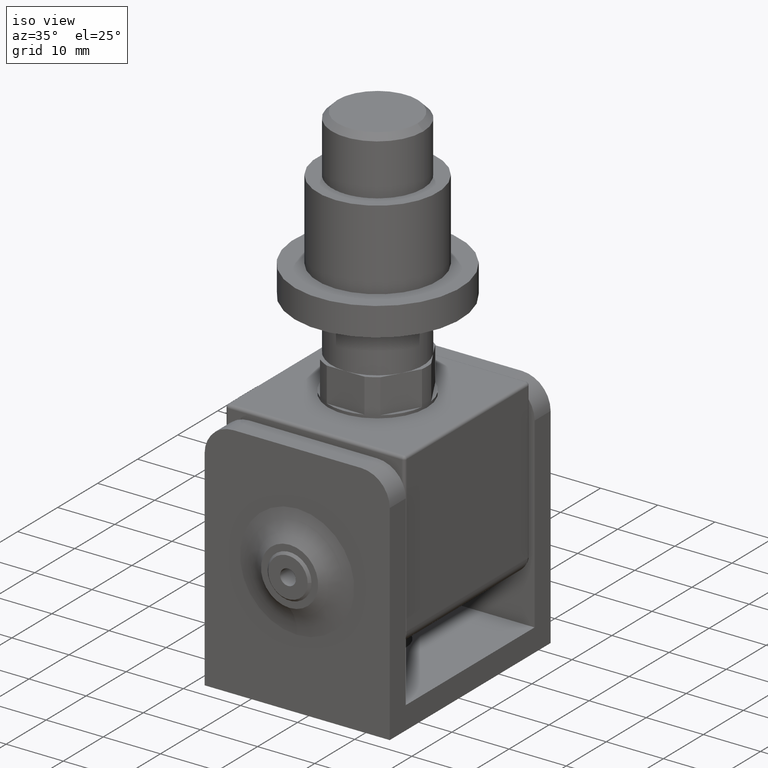
[diagram: clean part render]
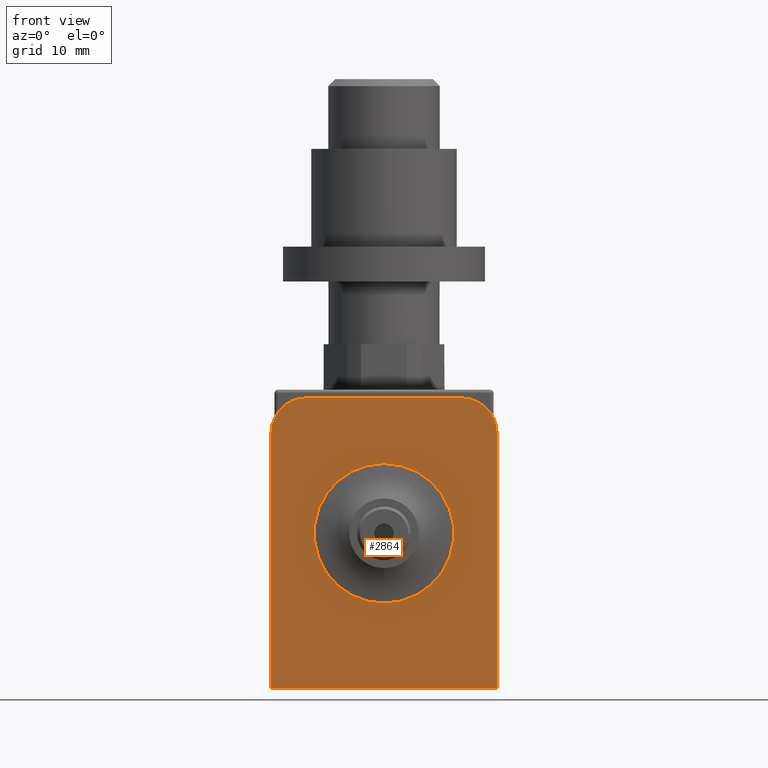
[diagram: tour spotlight — one face highlighted and labeled with its STEP entity id]
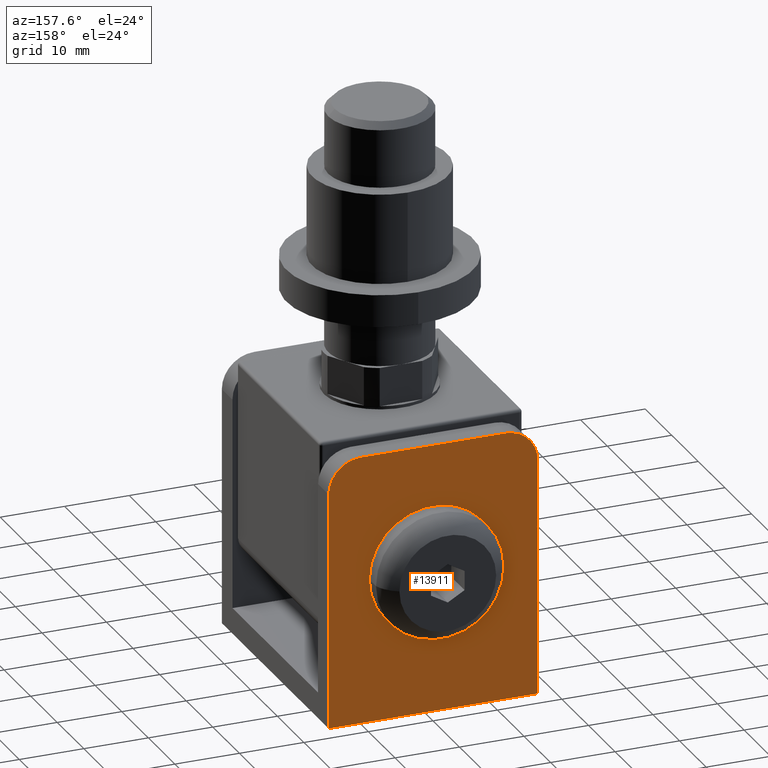
[diagram: tour spotlight — one face highlighted and labeled with its STEP entity id]
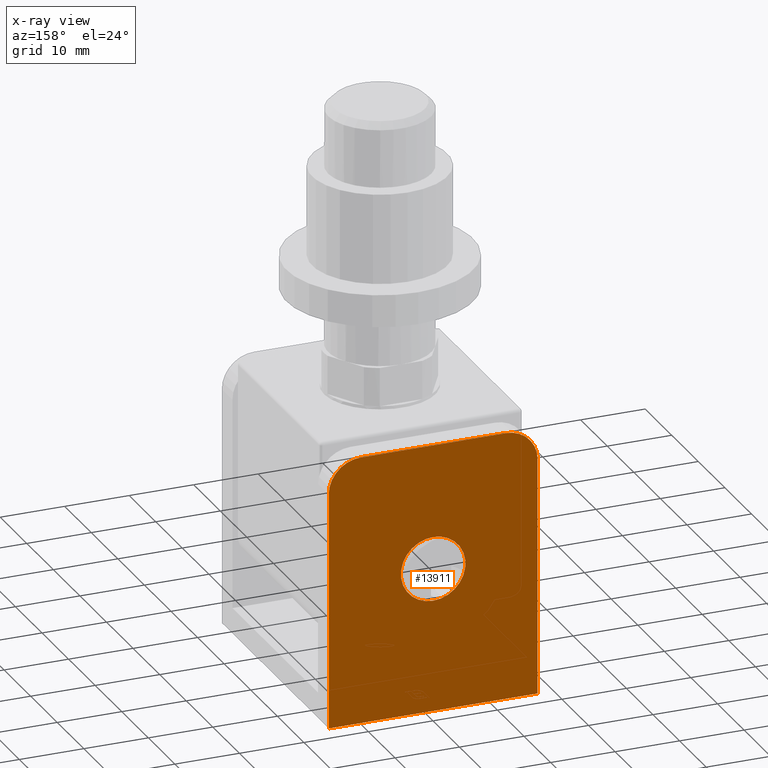
[diagram: x-ray of the same camera — body ghosted, this tour face saturated]
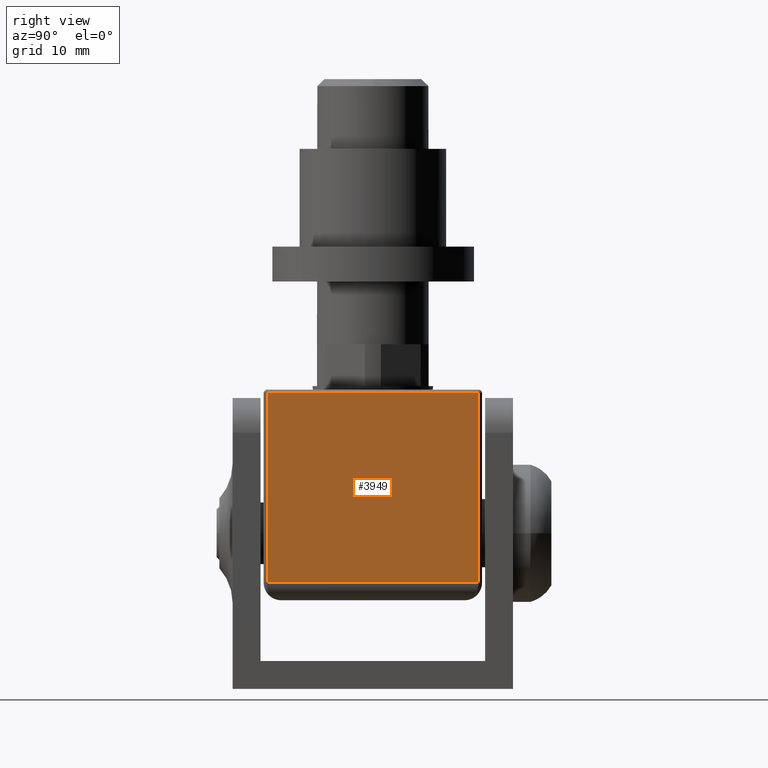
[diagram: tour spotlight — one face highlighted and labeled with its STEP entity id]
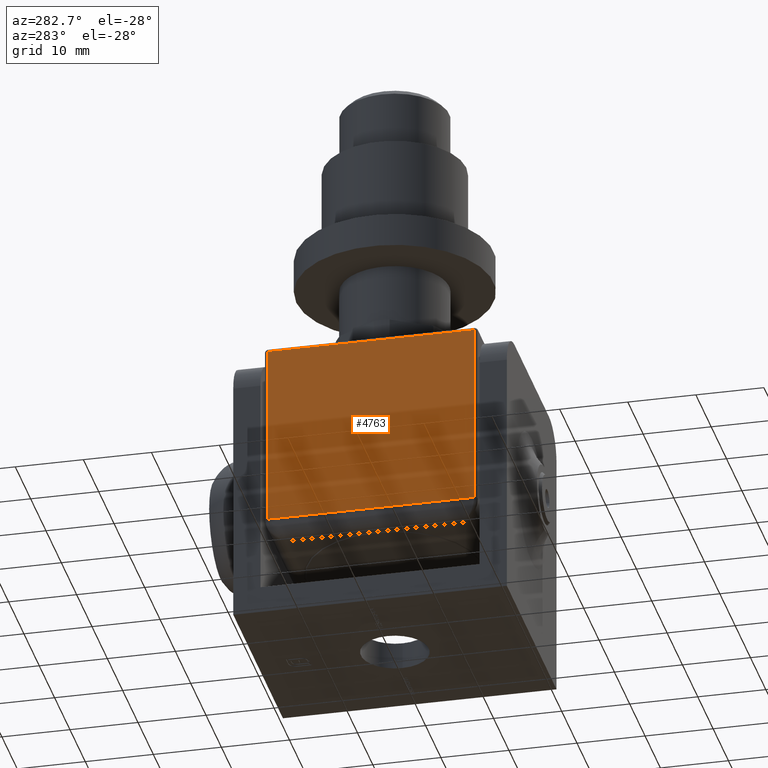
[diagram: tour spotlight — one face highlighted and labeled with its STEP entity id]
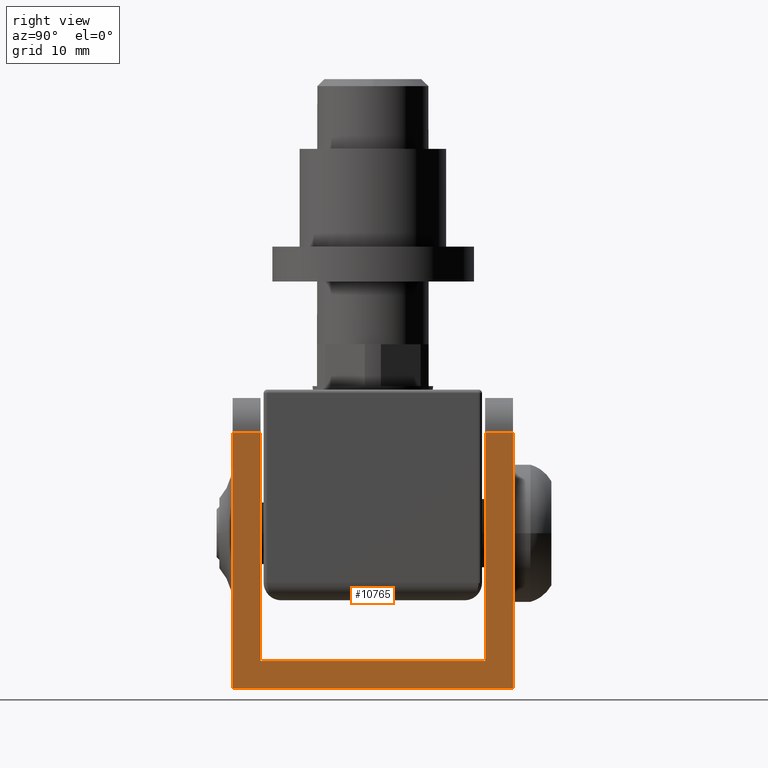
[diagram: tour spotlight — one face highlighted and labeled with its STEP entity id]
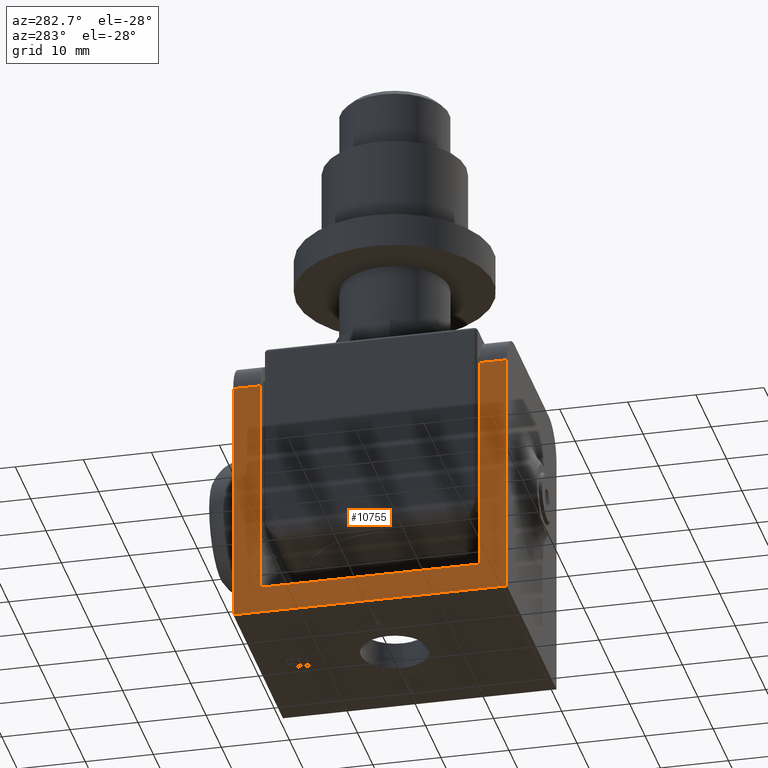
[diagram: tour spotlight — one face highlighted and labeled with its STEP entity id]
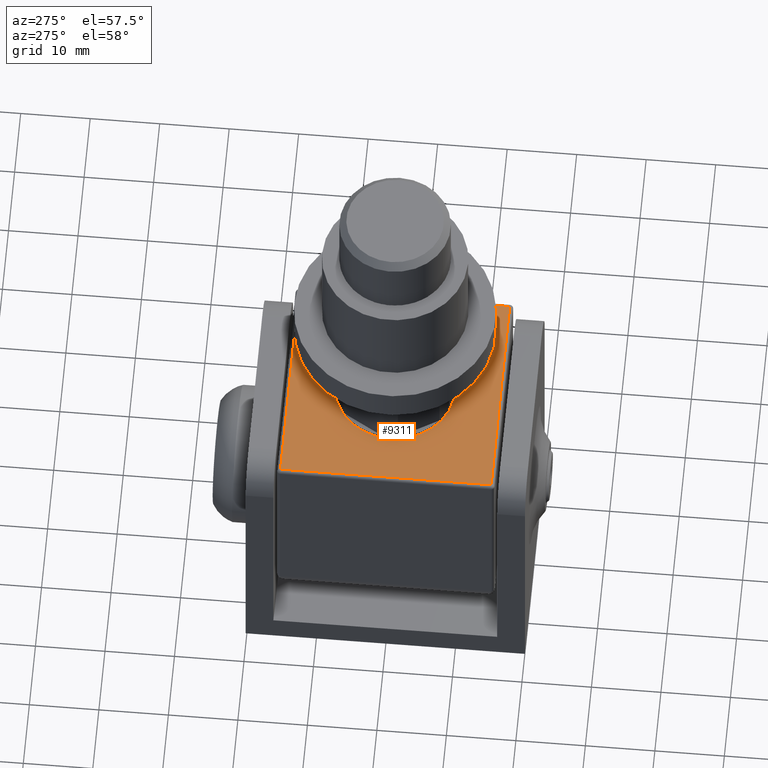
[diagram: tour spotlight — one face highlighted and labeled with its STEP entity id]
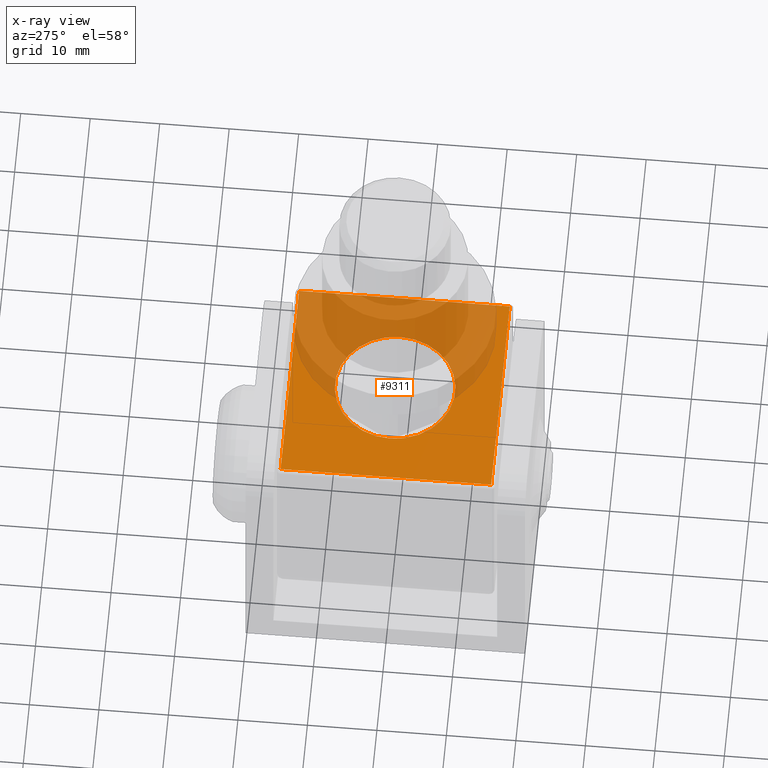
[diagram: x-ray of the same camera — body ghosted, this tour face saturated]
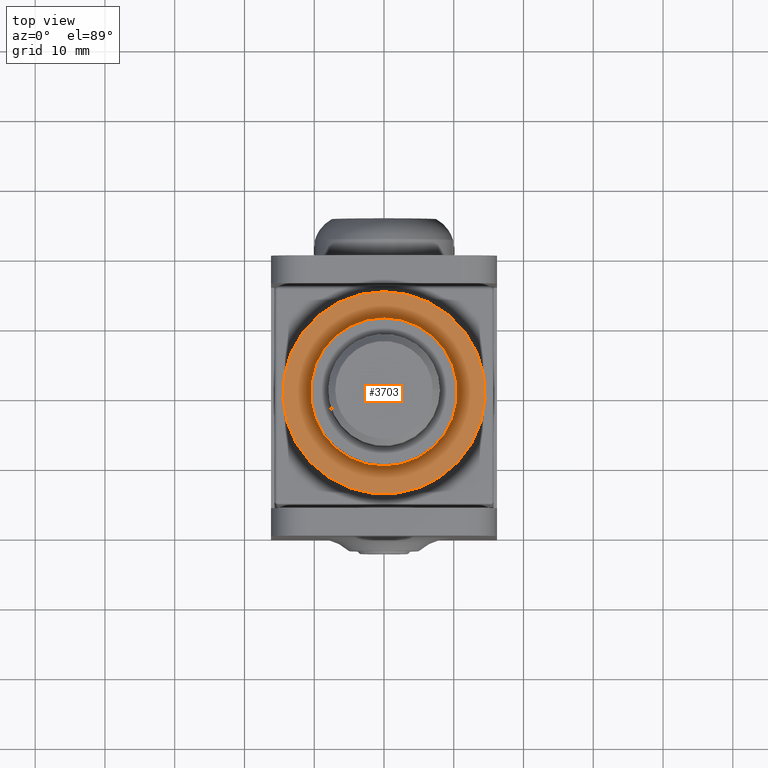
[diagram: tour spotlight — one face highlighted and labeled with its STEP entity id]
A machine part: a face-by-face anatomy tour. The part has 358 B-rep faces; the first image is the clean iso view, then the 8 largest visible faces are spotlighted one at a time (largest first), each with its STEP entity span.

Face 1 — front view, entity #2864. In plain terms, the highlighted planar face has unit normal (0, 1, 0).
Definition (entity closure, byte-faithful):
#518 = DIRECTION ( 'NONE',  ( 0.000000000000000000, -1.000000000000000000, -8.320016671351592820E-17 ) ) ;
#564 = CARTESIAN_POINT ( 'NONE',  ( 11.19999999999999751, -20.10000000000000142, 20.84999999999999432 ) ) ;
#811 = CARTESIAN_POINT ( 'NONE',  ( 16.19999999999999929, -20.10000000000000142, 20.84999999999999432 ) ) ;
#851 = CARTESIAN_POINT ( 'NONE',  ( -16.19999999999999929, -20.09999999999999787, -20.85000000000000853 ) ) ;
#889 = LINE ( 'NONE', #9483, #4827 ) ;
#1479 = ORIENTED_EDGE ( 'NONE', *, *, #5475, .F. ) ;
#1651 = AXIS2_PLACEMENT_3D ( 'NONE', #9120, #1991, #15216 ) ;
#1750 = CARTESIAN_POINT ( 'NONE',  ( 11.19999999999999751, -20.10000000000000142, 15.84999999999999609 ) ) ;
#1991 = DIRECTION ( 'NONE',  ( -0.000000000000000000, 1.000000000000000000, 8.320016671351592820E-17 ) ) ;
#2022 = DIRECTION ( 'NONE',  ( -0.000000000000000000, 8.320016671351592820E-17, -1.000000000000000000 ) ) ;
#2117 = EDGE_CURVE ( 'NONE', #14115, #7641, #2858, .T. ) ;
#2144 = PLANE ( 'NONE',  #1651 ) ;
#2858 = CIRCLE ( 'NONE', #3242, 5.000000000000000888 ) ;
#2864 = ADVANCED_FACE ( 'NONE', ( #3932, #9928 ), #2144, .F. ) ;
#2936 = EDGE_CURVE ( 'NONE', #7641, #11151, #9175, .T. ) ;
#2960 = ORIENTED_EDGE ( 'NONE', *, *, #13656, .T. ) ;
#3242 = AXIS2_PLACEMENT_3D ( 'NONE', #1750, #518, #6703 ) ;
#3824 = CARTESIAN_POINT ( 'NONE',  ( -11.19999999999999751, -20.10000000000000142, 20.84999999999999432 ) ) ;
#3932 = FACE_BOUND ( 'NONE', #5524, .T. ) ;
#4608 = ORIENTED_EDGE ( 'NONE', *, *, #15396, .T. ) ;
#4646 = DIRECTION ( 'NONE',  ( -1.000000000000000000, -0.000000000000000000, -0.000000000000000000 ) ) ;
#4811 = EDGE_CURVE ( 'NONE', #14301, #9788, #889, .T. ) ;
#4827 = VECTOR ( 'NONE', #14547, 1000.000000000000000 ) ;
#5137 = LINE ( 'NONE', #851, #11271 ) ;
#5475 = EDGE_CURVE ( 'NONE', #11254, #11254, #15276, .T. ) ;
#5501 = LINE ( 'NONE', #7041, #13654 ) ;
#5524 = EDGE_LOOP ( 'NONE', ( #1479 ) ) ;
#5588 = CIRCLE ( 'NONE', #8293, 5.000000000000000888 ) ;
#5986 = VERTEX_POINT ( 'NONE', #11732 ) ;
#6019 = VECTOR ( 'NONE', #4646, 1000.000000000000000 ) ;
#6703 = DIRECTION ( 'NONE',  ( -1.040834085586084059E-15, 0.000000000000000000, 1.000000000000000000 ) ) ;
#6713 = DIRECTION ( 'NONE',  ( 0.000000000000000000, -1.000000000000000000, -8.320016671351592820E-17 ) ) ;
#6760 = ORIENTED_EDGE ( 'NONE', *, *, #4811, .F. ) ;
#7041 = CARTESIAN_POINT ( 'NONE',  ( 16.19999999999999929, -20.09999999999999787, -20.85000000000000853 ) ) ;
#7299 = DIRECTION ( 'NONE',  ( 0.000000000000000000, 0.000000000000000000, -1.000000000000000000 ) ) ;
#7641 = VERTEX_POINT ( 'NONE', #564 ) ;
#8225 = DIRECTION ( 'NONE',  ( -0.000000000000000000, 8.320016671351592820E-17, -1.000000000000000000 ) ) ;
#8293 = AXIS2_PLACEMENT_3D ( 'NONE', #12772, #6713, #15203 ) ;
#8859 = EDGE_CURVE ( 'NONE', #14115, #14301, #5501, .T. ) ;
#9120 = CARTESIAN_POINT ( 'NONE',  ( 16.19999999999999929, -20.09999999999999787, -20.85000000000000853 ) ) ;
#9175 = LINE ( 'NONE', #811, #6019 ) ;
#9425 = ORIENTED_EDGE ( 'NONE', *, *, #2936, .T. ) ;
#9483 = CARTESIAN_POINT ( 'NONE',  ( 16.19999999999999929, -20.09999999999999787, -20.85000000000000853 ) ) ;
#9755 = DIRECTION ( 'NONE',  ( -0.000000000000000000, -1.000000000000000000, -0.000000000000000000 ) ) ;
#9788 = VERTEX_POINT ( 'NONE', #10820 ) ;
#9890 = EDGE_LOOP ( 'NONE', ( #13016, #13807, #9425, #2960, #4608, #6760 ) ) ;
#9928 = FACE_OUTER_BOUND ( 'NONE', #9890, .T. ) ;
#10820 = CARTESIAN_POINT ( 'NONE',  ( -16.19999999999999929, -20.09999999999999787, -20.85000000000000853 ) ) ;
#11028 = AXIS2_PLACEMENT_3D ( 'NONE', #13105, #9755, #7299 ) ;
#11151 = VERTEX_POINT ( 'NONE', #3824 ) ;
#11254 = VERTEX_POINT ( 'NONE', #12913 ) ;
#11271 = VECTOR ( 'NONE', #2022, 1000.000000000000000 ) ;
#11732 = CARTESIAN_POINT ( 'NONE',  ( -16.19999999999999929, -20.10000000000000142, 15.84999999999998899 ) ) ;
#12772 = CARTESIAN_POINT ( 'NONE',  ( -11.19999999999999751, -20.10000000000000142, 15.84999999999999609 ) ) ;
#12913 = CARTESIAN_POINT ( 'NONE',  ( 0.000000000000000000, -20.10000000000000142, -8.550000000000007816 ) ) ;
#13016 = ORIENTED_EDGE ( 'NONE', *, *, #8859, .F. ) ;
#13105 = CARTESIAN_POINT ( 'NONE',  ( 0.000000000000000000, -20.10000000000000142, 1.449999999999993072 ) ) ;
#13472 = CARTESIAN_POINT ( 'NONE',  ( 16.19999999999999929, -20.09999999999999787, -20.85000000000000853 ) ) ;
#13525 = CARTESIAN_POINT ( 'NONE',  ( 16.19999999999999929, -20.10000000000000142, 15.84999999999998899 ) ) ;
#13654 = VECTOR ( 'NONE', #8225, 1000.000000000000000 ) ;
#13656 = EDGE_CURVE ( 'NONE', #11151, #5986, #5588, .T. ) ;
#13807 = ORIENTED_EDGE ( 'NONE', *, *, #2117, .T. ) ;
#14115 = VERTEX_POINT ( 'NONE', #13525 ) ;
#14301 = VERTEX_POINT ( 'NONE', #13472 ) ;
#14547 = DIRECTION ( 'NONE',  ( -1.000000000000000000, -0.000000000000000000, -0.000000000000000000 ) ) ;
#15203 = DIRECTION ( 'NONE',  ( 0.000000000000000000, 0.000000000000000000, 1.000000000000000000 ) ) ;
#15216 = DIRECTION ( 'NONE',  ( 0.000000000000000000, -8.320016671351592820E-17, 1.000000000000000000 ) ) ;
#15276 = CIRCLE ( 'NONE', #11028, 10.00000000000000000 ) ;
#15396 = EDGE_CURVE ( 'NONE', #5986, #9788, #5137, .T. ) ;

Face 2 — auxiliary view, entity #13911. An x-ray twin of the same camera follows (body ghosted, this face saturated) — the face is partly hidden behind the body. In plain terms, the highlighted planar face has unit normal (0, -1, -0).
Definition (entity closure, byte-faithful):
#103 = LINE ( 'NONE', #11589, #8137 ) ;
#355 = CARTESIAN_POINT ( 'NONE',  ( -16.19999999999999929, 20.09999999999999787, 20.85000000000000142 ) ) ;
#607 = CARTESIAN_POINT ( 'NONE',  ( 0.000000000000000000, 20.10000000000000142, 1.449999999999999956 ) ) ;
#623 = VERTEX_POINT ( 'NONE', #10545 ) ;
#938 = ORIENTED_EDGE ( 'NONE', *, *, #8092, .T. ) ;
#1374 = CIRCLE ( 'NONE', #12847, 5.000000000000000000 ) ;
#2060 = CARTESIAN_POINT ( 'NONE',  ( 11.19999999999999751, 20.09999999999999787, 20.85000000000000142 ) ) ;
#2363 = ORIENTED_EDGE ( 'NONE', *, *, #12056, .T. ) ;
#2403 = ORIENTED_EDGE ( 'NONE', *, *, #10588, .F. ) ;
#3107 = DIRECTION ( 'NONE',  ( -0.000000000000000000, -8.320016671351592820E-17, 1.000000000000000000 ) ) ;
#3129 = DIRECTION ( 'NONE',  ( -1.000000000000000000, -0.000000000000000000, -0.000000000000000000 ) ) ;
#3165 = CARTESIAN_POINT ( 'NONE',  ( 16.19999999999999929, 20.09999999999999787, 20.85000000000000142 ) ) ;
#3509 = EDGE_CURVE ( 'NONE', #10697, #5948, #4292, .T. ) ;
#3822 = CARTESIAN_POINT ( 'NONE',  ( 16.19999999999999929, 20.09999999999999787, 20.85000000000000142 ) ) ;
#3893 = FACE_OUTER_BOUND ( 'NONE', #11222, .T. ) ;
#4043 = CIRCLE ( 'NONE', #12116, 5.000000000000000888 ) ;
#4292 = LINE ( 'NONE', #8311, #11935 ) ;
#4400 = VERTEX_POINT ( 'NONE', #8389 ) ;
#4503 = ORIENTED_EDGE ( 'NONE', *, *, #3509, .F. ) ;
#4542 = DIRECTION ( 'NONE',  ( 0.000000000000000000, 0.000000000000000000, -1.000000000000000000 ) ) ;
#4991 = EDGE_CURVE ( 'NONE', #4400, #5948, #4043, .T. ) ;
#5096 = VERTEX_POINT ( 'NONE', #8352 ) ;
#5118 = ORIENTED_EDGE ( 'NONE', *, *, #11719, .F. ) ;
#5246 = CARTESIAN_POINT ( 'NONE',  ( -11.19999999999999751, 20.09999999999999787, 20.85000000000000142 ) ) ;
#5754 = CARTESIAN_POINT ( 'NONE',  ( -11.19999999999999751, 20.09999999999999787, 15.85000000000000320 ) ) ;
#5948 = VERTEX_POINT ( 'NONE', #5246 ) ;
#6098 = VECTOR ( 'NONE', #9714, 1000.000000000000000 ) ;
#6246 = DIRECTION ( 'NONE',  ( 0.000000000000000000, 8.320016671351592820E-17, -1.000000000000000000 ) ) ;
#6296 = ORIENTED_EDGE ( 'NONE', *, *, #15462, .T. ) ;
#6384 = CARTESIAN_POINT ( 'NONE',  ( 11.19999999999999751, 20.09999999999999787, 15.85000000000000320 ) ) ;
#6525 = DIRECTION ( 'NONE',  ( 0.000000000000000000, 0.000000000000000000, 1.000000000000000000 ) ) ;
#7453 = FACE_BOUND ( 'NONE', #8080, .T. ) ;
#7549 = CARTESIAN_POINT ( 'NONE',  ( 16.19999999999999929, 20.10000000000000142, -20.85000000000000853 ) ) ;
#8080 = EDGE_LOOP ( 'NONE', ( #2403 ) ) ;
#8092 = EDGE_CURVE ( 'NONE', #12096, #4400, #13310, .T. ) ;
#8137 = VECTOR ( 'NONE', #3129, 1000.000000000000000 ) ;
#8311 = CARTESIAN_POINT ( 'NONE',  ( 16.19999999999999929, 20.09999999999999787, 20.85000000000000142 ) ) ;
#8352 = CARTESIAN_POINT ( 'NONE',  ( 16.19999999999999929, 20.09999999999999787, 15.85000000000000320 ) ) ;
#8389 = CARTESIAN_POINT ( 'NONE',  ( -16.19999999999999929, 20.09999999999999787, 15.85000000000000320 ) ) ;
#8713 = DIRECTION ( 'NONE',  ( -0.000000000000000000, 1.000000000000000000, 8.320016671351592820E-17 ) ) ;
#8965 = CIRCLE ( 'NONE', #13164, 5.000000000000000888 ) ;
#9618 = VERTEX_POINT ( 'NONE', #7549 ) ;
#9714 = DIRECTION ( 'NONE',  ( -0.000000000000000000, -8.320016671351592820E-17, 1.000000000000000000 ) ) ;
#9899 = AXIS2_PLACEMENT_3D ( 'NONE', #3822, #14505, #6246 ) ;
#10161 = DIRECTION ( 'NONE',  ( 0.000000000000000000, 1.000000000000000000, 1.101411730778924924E-16 ) ) ;
#10418 = CARTESIAN_POINT ( 'NONE',  ( -16.19999999999999929, 20.10000000000000142, -20.85000000000000853 ) ) ;
#10545 = CARTESIAN_POINT ( 'NONE',  ( 0.000000000000000000, 20.10000000000000142, 6.450000000000000178 ) ) ;
#10588 = EDGE_CURVE ( 'NONE', #623, #623, #1374, .T. ) ;
#10697 = VERTEX_POINT ( 'NONE', #2060 ) ;
#10858 = PLANE ( 'NONE',  #9899 ) ;
#11222 = EDGE_LOOP ( 'NONE', ( #4503, #2363, #5118, #6296, #938, #12453 ) ) ;
#11589 = CARTESIAN_POINT ( 'NONE',  ( 16.19999999999999929, 20.10000000000000142, -20.85000000000000853 ) ) ;
#11719 = EDGE_CURVE ( 'NONE', #9618, #5096, #15331, .T. ) ;
#11875 = DIRECTION ( 'NONE',  ( -0.000000000000000000, 1.000000000000000000, 8.320016671351592820E-17 ) ) ;
#11892 = DIRECTION ( 'NONE',  ( -1.000000000000000000, -0.000000000000000000, -0.000000000000000000 ) ) ;
#11935 = VECTOR ( 'NONE', #11892, 1000.000000000000000 ) ;
#12056 = EDGE_CURVE ( 'NONE', #10697, #5096, #8965, .T. ) ;
#12096 = VERTEX_POINT ( 'NONE', #10418 ) ;
#12116 = AXIS2_PLACEMENT_3D ( 'NONE', #5754, #11875, #4542 ) ;
#12125 = VECTOR ( 'NONE', #3107, 1000.000000000000000 ) ;
#12453 = ORIENTED_EDGE ( 'NONE', *, *, #4991, .T. ) ;
#12847 = AXIS2_PLACEMENT_3D ( 'NONE', #607, #10161, #6525 ) ;
#13164 = AXIS2_PLACEMENT_3D ( 'NONE', #6384, #8713, #13474 ) ;
#13310 = LINE ( 'NONE', #355, #6098 ) ;
#13474 = DIRECTION ( 'NONE',  ( 0.000000000000000000, 0.000000000000000000, -1.000000000000000000 ) ) ;
#13911 = ADVANCED_FACE ( 'NONE', ( #7453, #3893 ), #10858, .F. ) ;
#14505 = DIRECTION ( 'NONE',  ( 0.000000000000000000, -1.000000000000000000, -8.320016671351592820E-17 ) ) ;
#15331 = LINE ( 'NONE', #3165, #12125 ) ;
#15462 = EDGE_CURVE ( 'NONE', #9618, #12096, #103, .T. ) ;

Face 3 — right view, entity #3949. In plain terms, the highlighted planar face has unit normal (-1, 0, 0).
Definition (entity closure, byte-faithful):
#371 = EDGE_LOOP ( 'NONE', ( #11568, #6576, #12051, #13258 ) ) ;
#555 = CARTESIAN_POINT ( 'NONE',  ( 15.69999999999999574, 15.15000000000000036, -12.59999999999999787 ) ) ;
#1798 = CARTESIAN_POINT ( 'NONE',  ( 15.69999999999999574, -15.15000000000000036, -12.59999999999999787 ) ) ;
#1899 = DIRECTION ( 'NONE',  ( 0.000000000000000000, -1.000000000000000000, 0.000000000000000000 ) ) ;
#1951 = FACE_OUTER_BOUND ( 'NONE', #371, .T. ) ;
#3617 = VECTOR ( 'NONE', #14136, 1000.000000000000000 ) ;
#3680 = EDGE_CURVE ( 'NONE', #12036, #12292, #10165, .T. ) ;
#3949 = ADVANCED_FACE ( 'NONE', ( #1951 ), #5835, .F. ) ;
#3980 = EDGE_CURVE ( 'NONE', #4880, #12036, #6789, .T. ) ;
#4569 = DIRECTION ( 'NONE',  ( -1.000000000000000000, 0.000000000000000000, 1.148823494024375448E-16 ) ) ;
#4880 = VERTEX_POINT ( 'NONE', #555 ) ;
#5048 = AXIS2_PLACEMENT_3D ( 'NONE', #10403, #4569, #5779 ) ;
#5451 = LINE ( 'NONE', #5674, #13261 ) ;
#5480 = CARTESIAN_POINT ( 'NONE',  ( 15.69999999999999574, -15.15000000000000036, -15.09999999999999964 ) ) ;
#5674 = CARTESIAN_POINT ( 'NONE',  ( 15.69999999999999574, 15.65000000000000036, -12.59999999999999787 ) ) ;
#5779 = DIRECTION ( 'NONE',  ( 1.148823494024375448E-16, 0.000000000000000000, 1.000000000000000000 ) ) ;
#5835 = PLANE ( 'NONE',  #5048 ) ;
#6450 = VERTEX_POINT ( 'NONE', #1798 ) ;
#6576 = ORIENTED_EDGE ( 'NONE', *, *, #12660, .T. ) ;
#6789 = LINE ( 'NONE', #7081, #3617 ) ;
#7081 = CARTESIAN_POINT ( 'NONE',  ( 15.69999999999999929, 15.15000000000000036, 15.09999999999999964 ) ) ;
#7282 = VECTOR ( 'NONE', #12639, 1000.000000000000000 ) ;
#7826 = CARTESIAN_POINT ( 'NONE',  ( 15.69999999999999929, 15.65000000000000036, 14.59999999999999787 ) ) ;
#7904 = DIRECTION ( 'NONE',  ( -0.000000000000000000, 1.000000000000000000, -0.000000000000000000 ) ) ;
#9159 = LINE ( 'NONE', #5480, #7282 ) ;
#9621 = VECTOR ( 'NONE', #1899, 1000.000000000000000 ) ;
#10083 = EDGE_CURVE ( 'NONE', #6450, #4880, #5451, .T. ) ;
#10165 = LINE ( 'NONE', #7826, #9621 ) ;
#10403 = CARTESIAN_POINT ( 'NONE',  ( 15.69999999999999574, 15.65000000000000036, -15.09999999999999964 ) ) ;
#11568 = ORIENTED_EDGE ( 'NONE', *, *, #3680, .T. ) ;
#11793 = CARTESIAN_POINT ( 'NONE',  ( 15.69999999999999929, 15.15000000000000036, 14.59999999999999787 ) ) ;
#11940 = CARTESIAN_POINT ( 'NONE',  ( 15.69999999999999929, -15.15000000000000036, 14.59999999999999787 ) ) ;
#12036 = VERTEX_POINT ( 'NONE', #11793 ) ;
#12051 = ORIENTED_EDGE ( 'NONE', *, *, #10083, .T. ) ;
#12292 = VERTEX_POINT ( 'NONE', #11940 ) ;
#12639 = DIRECTION ( 'NONE',  ( -1.148823494024375448E-16, 0.000000000000000000, -1.000000000000000000 ) ) ;
#12660 = EDGE_CURVE ( 'NONE', #12292, #6450, #9159, .T. ) ;
#13258 = ORIENTED_EDGE ( 'NONE', *, *, #3980, .T. ) ;
#13261 = VECTOR ( 'NONE', #7904, 1000.000000000000000 ) ;
#14136 = DIRECTION ( 'NONE',  ( 1.148823494024375448E-16, -0.000000000000000000, 1.000000000000000000 ) ) ;

Face 4 — auxiliary view, entity #4763. In plain terms, the highlighted planar face has unit normal (1, 0, -0).
Definition (entity closure, byte-faithful):
#131 = EDGE_CURVE ( 'NONE', #5462, #6705, #10668, .T. ) ;
#942 = EDGE_LOOP ( 'NONE', ( #6093, #9320, #1393, #3589 ) ) ;
#1393 = ORIENTED_EDGE ( 'NONE', *, *, #131, .T. ) ;
#1847 = VERTEX_POINT ( 'NONE', #7449 ) ;
#2150 = DIRECTION ( 'NONE',  ( -0.000000000000000000, 1.000000000000000000, -0.000000000000000000 ) ) ;
#2182 = PLANE ( 'NONE',  #2763 ) ;
#2666 = CARTESIAN_POINT ( 'NONE',  ( -15.69999999999999929, 15.15000000000000036, -12.59999999999999787 ) ) ;
#2763 = AXIS2_PLACEMENT_3D ( 'NONE', #15198, #9275, #10448 ) ;
#3404 = EDGE_CURVE ( 'NONE', #1847, #5462, #10269, .T. ) ;
#3589 = ORIENTED_EDGE ( 'NONE', *, *, #14282, .T. ) ;
#3687 = FACE_OUTER_BOUND ( 'NONE', #942, .T. ) ;
#4504 = DIRECTION ( 'NONE',  ( 1.148823494024375448E-16, -0.000000000000000000, 1.000000000000000000 ) ) ;
#4763 = ADVANCED_FACE ( 'NONE', ( #3687 ), #2182, .F. ) ;
#5462 = VERTEX_POINT ( 'NONE', #8549 ) ;
#6093 = ORIENTED_EDGE ( 'NONE', *, *, #13751, .T. ) ;
#6361 = CARTESIAN_POINT ( 'NONE',  ( -15.69999999999999929, 15.15000000000000036, -12.59999999999999787 ) ) ;
#6705 = VERTEX_POINT ( 'NONE', #14729 ) ;
#7040 = DIRECTION ( 'NONE',  ( 0.000000000000000000, -1.000000000000000000, 0.000000000000000000 ) ) ;
#7257 = LINE ( 'NONE', #2666, #14134 ) ;
#7449 = CARTESIAN_POINT ( 'NONE',  ( -15.69999999999999929, -15.15000000000000036, -12.59999999999999787 ) ) ;
#8549 = CARTESIAN_POINT ( 'NONE',  ( -15.69999999999999574, -15.15000000000000036, 14.59999999999999787 ) ) ;
#9275 = DIRECTION ( 'NONE',  ( 1.000000000000000000, 0.000000000000000000, -1.148823494024375448E-16 ) ) ;
#9320 = ORIENTED_EDGE ( 'NONE', *, *, #3404, .T. ) ;
#10269 = LINE ( 'NONE', #15144, #12469 ) ;
#10295 = VECTOR ( 'NONE', #2150, 1000.000000000000000 ) ;
#10367 = CARTESIAN_POINT ( 'NONE',  ( -15.69999999999999574, 15.65000000000000036, 14.59999999999999787 ) ) ;
#10448 = DIRECTION ( 'NONE',  ( -1.148823494024375448E-16, 0.000000000000000000, -1.000000000000000000 ) ) ;
#10668 = LINE ( 'NONE', #10367, #10295 ) ;
#11747 = LINE ( 'NONE', #14140, #15089 ) ;
#12469 = VECTOR ( 'NONE', #4504, 1000.000000000000000 ) ;
#13751 = EDGE_CURVE ( 'NONE', #15225, #1847, #11747, .T. ) ;
#14134 = VECTOR ( 'NONE', #14597, 1000.000000000000000 ) ;
#14140 = CARTESIAN_POINT ( 'NONE',  ( -15.69999999999999929, 15.65000000000000036, -12.59999999999999787 ) ) ;
#14282 = EDGE_CURVE ( 'NONE', #6705, #15225, #7257, .T. ) ;
#14597 = DIRECTION ( 'NONE',  ( -1.148823494024375448E-16, -0.000000000000000000, -1.000000000000000000 ) ) ;
#14729 = CARTESIAN_POINT ( 'NONE',  ( -15.69999999999999574, 15.15000000000000036, 14.59999999999999787 ) ) ;
#15089 = VECTOR ( 'NONE', #7040, 1000.000000000000000 ) ;
#15144 = CARTESIAN_POINT ( 'NONE',  ( -15.69999999999999929, -15.15000000000000036, -15.09999999999999964 ) ) ;
#15198 = CARTESIAN_POINT ( 'NONE',  ( -15.69999999999999929, 15.65000000000000036, -15.09999999999999964 ) ) ;
#15225 = VERTEX_POINT ( 'NONE', #6361 ) ;

Face 5 — right view, entity #10765. In plain terms, the highlighted planar face has unit normal (-1, 0, 0).
Definition (entity closure, byte-faithful):
#14 = EDGE_CURVE ( 'NONE', #5096, #3259, #13434, .T. ) ;
#62 = ORIENTED_EDGE ( 'NONE', *, *, #14, .T. ) ;
#241 = VECTOR ( 'NONE', #4302, 1000.000000000000000 ) ;
#706 = CARTESIAN_POINT ( 'NONE',  ( 16.19999999999999929, 2.749536709423244924E-14, 15.85000000000002984 ) ) ;
#1820 = AXIS2_PLACEMENT_3D ( 'NONE', #11397, #5647, #2003 ) ;
#2003 = DIRECTION ( 'NONE',  ( 0.000000000000000000, 0.000000000000000000, 1.000000000000000000 ) ) ;
#3107 = DIRECTION ( 'NONE',  ( -0.000000000000000000, -8.320016671351592820E-17, 1.000000000000000000 ) ) ;
#3165 = CARTESIAN_POINT ( 'NONE',  ( 16.19999999999999929, 20.09999999999999787, 20.85000000000000142 ) ) ;
#3259 = VERTEX_POINT ( 'NONE', #5558 ) ;
#3476 = VERTEX_POINT ( 'NONE', #14233 ) ;
#3730 = VECTOR ( 'NONE', #15332, 1000.000000000000000 ) ;
#4252 = EDGE_CURVE ( 'NONE', #14022, #3476, #9776, .T. ) ;
#4302 = DIRECTION ( 'NONE',  ( -0.000000000000000000, -1.000000000000000000, -0.000000000000000000 ) ) ;
#4807 = DIRECTION ( 'NONE',  ( -0.000000000000000000, -0.000000000000000000, -1.000000000000000000 ) ) ;
#4848 = ORIENTED_EDGE ( 'NONE', *, *, #5031, .T. ) ;
#5031 = EDGE_CURVE ( 'NONE', #10951, #14115, #11904, .T. ) ;
#5096 = VERTEX_POINT ( 'NONE', #8352 ) ;
#5501 = LINE ( 'NONE', #7041, #13654 ) ;
#5558 = CARTESIAN_POINT ( 'NONE',  ( 16.19999999999999929, 16.09999999999999787, 15.85000000000000320 ) ) ;
#5647 = DIRECTION ( 'NONE',  ( -1.000000000000000000, 0.000000000000000000, 0.000000000000000000 ) ) ;
#5651 = FACE_OUTER_BOUND ( 'NONE', #7516, .T. ) ;
#6765 = LINE ( 'NONE', #11919, #10670 ) ;
#7041 = CARTESIAN_POINT ( 'NONE',  ( 16.19999999999999929, -20.09999999999999787, -20.85000000000000853 ) ) ;
#7063 = CARTESIAN_POINT ( 'NONE',  ( 16.19999999999999929, -4.124305064134867702E-14, 15.85000000000004405 ) ) ;
#7516 = EDGE_LOOP ( 'NONE', ( #12219, #62, #8141, #12321, #14999, #4848, #12421, #8770 ) ) ;
#7549 = CARTESIAN_POINT ( 'NONE',  ( 16.19999999999999929, 20.10000000000000142, -20.85000000000000853 ) ) ;
#7858 = CARTESIAN_POINT ( 'NONE',  ( 16.19999999999999929, -16.09999999999999787, -16.85000000000000497 ) ) ;
#8141 = ORIENTED_EDGE ( 'NONE', *, *, #10939, .T. ) ;
#8225 = DIRECTION ( 'NONE',  ( -0.000000000000000000, 8.320016671351592820E-17, -1.000000000000000000 ) ) ;
#8327 = CARTESIAN_POINT ( 'NONE',  ( 16.19999999999999929, 20.10000000000000142, -20.85000000000000853 ) ) ;
#8352 = CARTESIAN_POINT ( 'NONE',  ( 16.19999999999999929, 20.09999999999999787, 15.85000000000000320 ) ) ;
#8770 = ORIENTED_EDGE ( 'NONE', *, *, #15303, .T. ) ;
#8859 = EDGE_CURVE ( 'NONE', #14115, #14301, #5501, .T. ) ;
#9453 = VECTOR ( 'NONE', #11899, 1000.000000000000000 ) ;
#9618 = VERTEX_POINT ( 'NONE', #7549 ) ;
#9776 = LINE ( 'NONE', #7858, #241 ) ;
#9882 = CARTESIAN_POINT ( 'NONE',  ( 16.19999999999999929, 16.09999999999999787, -16.85000000000000497 ) ) ;
#10629 = DIRECTION ( 'NONE',  ( 0.000000000000000000, -1.000000000000000000, -2.602085213965208275E-15 ) ) ;
#10670 = VECTOR ( 'NONE', #4807, 1000.000000000000000 ) ;
#10765 = ADVANCED_FACE ( 'NONE', ( #5651 ), #12789, .F. ) ;
#10882 = CARTESIAN_POINT ( 'NONE',  ( 16.19999999999999929, -16.09999999999999787, 15.85000000000000320 ) ) ;
#10939 = EDGE_CURVE ( 'NONE', #3259, #14022, #6765, .T. ) ;
#10951 = VERTEX_POINT ( 'NONE', #10882 ) ;
#11288 = DIRECTION ( 'NONE',  ( 0.000000000000000000, -1.000000000000000000, 1.734723475976807094E-15 ) ) ;
#11397 = CARTESIAN_POINT ( 'NONE',  ( 16.19999999999999929, 0.000000000000000000, 0.000000000000000000 ) ) ;
#11719 = EDGE_CURVE ( 'NONE', #9618, #5096, #15331, .T. ) ;
#11899 = DIRECTION ( 'NONE',  ( -0.000000000000000000, 1.000000000000000000, 8.630465054610981035E-17 ) ) ;
#11904 = LINE ( 'NONE', #7063, #14711 ) ;
#11919 = CARTESIAN_POINT ( 'NONE',  ( 16.19999999999999929, 16.09999999999999787, -16.85000000000000497 ) ) ;
#12125 = VECTOR ( 'NONE', #3107, 1000.000000000000000 ) ;
#12219 = ORIENTED_EDGE ( 'NONE', *, *, #11719, .T. ) ;
#12321 = ORIENTED_EDGE ( 'NONE', *, *, #4252, .T. ) ;
#12421 = ORIENTED_EDGE ( 'NONE', *, *, #8859, .T. ) ;
#12755 = EDGE_CURVE ( 'NONE', #3476, #10951, #14362, .T. ) ;
#12789 = PLANE ( 'NONE',  #1820 ) ;
#13256 = VECTOR ( 'NONE', #11288, 1000.000000000000000 ) ;
#13434 = LINE ( 'NONE', #706, #13256 ) ;
#13472 = CARTESIAN_POINT ( 'NONE',  ( 16.19999999999999929, -20.09999999999999787, -20.85000000000000853 ) ) ;
#13525 = CARTESIAN_POINT ( 'NONE',  ( 16.19999999999999929, -20.10000000000000142, 15.84999999999998899 ) ) ;
#13654 = VECTOR ( 'NONE', #8225, 1000.000000000000000 ) ;
#14022 = VERTEX_POINT ( 'NONE', #9882 ) ;
#14113 = CARTESIAN_POINT ( 'NONE',  ( 16.19999999999999929, -16.09999999999999787, 20.85000000000000853 ) ) ;
#14115 = VERTEX_POINT ( 'NONE', #13525 ) ;
#14233 = CARTESIAN_POINT ( 'NONE',  ( 16.19999999999999929, -16.09999999999999787, -16.85000000000000497 ) ) ;
#14301 = VERTEX_POINT ( 'NONE', #13472 ) ;
#14362 = LINE ( 'NONE', #14113, #3730 ) ;
#14456 = LINE ( 'NONE', #8327, #9453 ) ;
#14711 = VECTOR ( 'NONE', #10629, 1000.000000000000000 ) ;
#14999 = ORIENTED_EDGE ( 'NONE', *, *, #12755, .T. ) ;
#15303 = EDGE_CURVE ( 'NONE', #14301, #9618, #14456, .T. ) ;
#15331 = LINE ( 'NONE', #3165, #12125 ) ;
#15332 = DIRECTION ( 'NONE',  ( -0.000000000000000000, -0.000000000000000000, 1.000000000000000000 ) ) ;

Face 6 — auxiliary view, entity #10755. In plain terms, the highlighted planar face has unit normal (-1, 0, 0).
Definition (entity closure, byte-faithful):
#355 = CARTESIAN_POINT ( 'NONE',  ( -16.19999999999999929, 20.09999999999999787, 20.85000000000000142 ) ) ;
#851 = CARTESIAN_POINT ( 'NONE',  ( -16.19999999999999929, -20.09999999999999787, -20.85000000000000853 ) ) ;
#984 = ORIENTED_EDGE ( 'NONE', *, *, #13159, .F. ) ;
#1222 = EDGE_CURVE ( 'NONE', #5986, #5476, #4018, .T. ) ;
#1282 = VECTOR ( 'NONE', #3207, 1000.000000000000000 ) ;
#1299 = CARTESIAN_POINT ( 'NONE',  ( -16.19999999999999929, -16.09999999999999787, -16.85000000000000497 ) ) ;
#1348 = DIRECTION ( 'NONE',  ( -0.000000000000000000, 1.000000000000000000, 2.602085213965208275E-15 ) ) ;
#1985 = VERTEX_POINT ( 'NONE', #14358 ) ;
#2022 = DIRECTION ( 'NONE',  ( -0.000000000000000000, 8.320016671351592820E-17, -1.000000000000000000 ) ) ;
#2197 = ORIENTED_EDGE ( 'NONE', *, *, #15396, .F. ) ;
#2479 = FACE_OUTER_BOUND ( 'NONE', #14685, .T. ) ;
#3079 = VERTEX_POINT ( 'NONE', #1299 ) ;
#3207 = DIRECTION ( 'NONE',  ( -0.000000000000000000, 1.000000000000000000, -1.734723475976807094E-15 ) ) ;
#3410 = AXIS2_PLACEMENT_3D ( 'NONE', #7863, #7818, #11619 ) ;
#3416 = CARTESIAN_POINT ( 'NONE',  ( -16.19999999999999929, -16.09999999999999787, -16.85000000000000497 ) ) ;
#3541 = LINE ( 'NONE', #3416, #5582 ) ;
#3815 = ORIENTED_EDGE ( 'NONE', *, *, #4877, .F. ) ;
#3903 = VECTOR ( 'NONE', #10566, 1000.000000000000000 ) ;
#4018 = LINE ( 'NONE', #13288, #12199 ) ;
#4400 = VERTEX_POINT ( 'NONE', #8389 ) ;
#4450 = LINE ( 'NONE', #14709, #5198 ) ;
#4720 = EDGE_CURVE ( 'NONE', #13386, #3079, #3541, .T. ) ;
#4817 = ORIENTED_EDGE ( 'NONE', *, *, #4720, .F. ) ;
#4877 = EDGE_CURVE ( 'NONE', #1985, #13386, #4450, .T. ) ;
#5137 = LINE ( 'NONE', #851, #11271 ) ;
#5198 = VECTOR ( 'NONE', #11187, 1000.000000000000000 ) ;
#5476 = VERTEX_POINT ( 'NONE', #14431 ) ;
#5564 = CARTESIAN_POINT ( 'NONE',  ( -16.19999999999999929, 20.09999999999998721, 15.85000000000000320 ) ) ;
#5582 = VECTOR ( 'NONE', #9374, 1000.000000000000000 ) ;
#5611 = DIRECTION ( 'NONE',  ( -0.000000000000000000, 1.000000000000000000, 8.630465054610981035E-17 ) ) ;
#5986 = VERTEX_POINT ( 'NONE', #11732 ) ;
#6026 = EDGE_CURVE ( 'NONE', #1985, #4400, #10950, .T. ) ;
#6098 = VECTOR ( 'NONE', #9714, 1000.000000000000000 ) ;
#6521 = ORIENTED_EDGE ( 'NONE', *, *, #1222, .T. ) ;
#6787 = PLANE ( 'NONE',  #3410 ) ;
#7047 = CARTESIAN_POINT ( 'NONE',  ( -16.19999999999999929, -16.09999999999999787, 20.85000000000000853 ) ) ;
#7103 = LINE ( 'NONE', #13853, #8758 ) ;
#7818 = DIRECTION ( 'NONE',  ( -1.000000000000000000, 0.000000000000000000, 0.000000000000000000 ) ) ;
#7863 = CARTESIAN_POINT ( 'NONE',  ( -16.19999999999999929, 0.000000000000000000, 0.000000000000000000 ) ) ;
#8019 = LINE ( 'NONE', #7047, #3903 ) ;
#8092 = EDGE_CURVE ( 'NONE', #12096, #4400, #13310, .T. ) ;
#8389 = CARTESIAN_POINT ( 'NONE',  ( -16.19999999999999929, 20.09999999999999787, 15.85000000000000320 ) ) ;
#8758 = VECTOR ( 'NONE', #5611, 1000.000000000000000 ) ;
#9374 = DIRECTION ( 'NONE',  ( -0.000000000000000000, -1.000000000000000000, -0.000000000000000000 ) ) ;
#9714 = DIRECTION ( 'NONE',  ( -0.000000000000000000, -8.320016671351592820E-17, 1.000000000000000000 ) ) ;
#9751 = ORIENTED_EDGE ( 'NONE', *, *, #6026, .T. ) ;
#9788 = VERTEX_POINT ( 'NONE', #10820 ) ;
#10418 = CARTESIAN_POINT ( 'NONE',  ( -16.19999999999999929, 20.10000000000000142, -20.85000000000000853 ) ) ;
#10522 = CARTESIAN_POINT ( 'NONE',  ( -16.19999999999999929, 16.09999999999999787, -16.85000000000000497 ) ) ;
#10566 = DIRECTION ( 'NONE',  ( -0.000000000000000000, -0.000000000000000000, 1.000000000000000000 ) ) ;
#10755 = ADVANCED_FACE ( 'NONE', ( #2479 ), #6787, .T. ) ;
#10820 = CARTESIAN_POINT ( 'NONE',  ( -16.19999999999999929, -20.09999999999999787, -20.85000000000000853 ) ) ;
#10950 = LINE ( 'NONE', #5564, #1282 ) ;
#11187 = DIRECTION ( 'NONE',  ( -0.000000000000000000, -0.000000000000000000, -1.000000000000000000 ) ) ;
#11271 = VECTOR ( 'NONE', #2022, 1000.000000000000000 ) ;
#11619 = DIRECTION ( 'NONE',  ( 0.000000000000000000, 0.000000000000000000, 1.000000000000000000 ) ) ;
#11732 = CARTESIAN_POINT ( 'NONE',  ( -16.19999999999999929, -20.10000000000000142, 15.84999999999998899 ) ) ;
#12096 = VERTEX_POINT ( 'NONE', #10418 ) ;
#12199 = VECTOR ( 'NONE', #1348, 1000.000000000000000 ) ;
#13140 = EDGE_CURVE ( 'NONE', #3079, #5476, #8019, .T. ) ;
#13159 = EDGE_CURVE ( 'NONE', #9788, #12096, #7103, .T. ) ;
#13288 = CARTESIAN_POINT ( 'NONE',  ( -16.19999999999999929, -16.09999999999998366, 15.85000000000000320 ) ) ;
#13310 = LINE ( 'NONE', #355, #6098 ) ;
#13386 = VERTEX_POINT ( 'NONE', #10522 ) ;
#13853 = CARTESIAN_POINT ( 'NONE',  ( -16.19999999999999929, 20.10000000000000142, -20.85000000000000853 ) ) ;
#14358 = CARTESIAN_POINT ( 'NONE',  ( -16.19999999999999929, 16.09999999999999787, 15.85000000000000320 ) ) ;
#14431 = CARTESIAN_POINT ( 'NONE',  ( -16.19999999999999929, -16.09999999999999787, 15.85000000000000320 ) ) ;
#14685 = EDGE_LOOP ( 'NONE', ( #3815, #9751, #14982, #984, #2197, #6521, #14892, #4817 ) ) ;
#14709 = CARTESIAN_POINT ( 'NONE',  ( -16.19999999999999929, 16.09999999999999787, -16.85000000000000497 ) ) ;
#14892 = ORIENTED_EDGE ( 'NONE', *, *, #13140, .F. ) ;
#14982 = ORIENTED_EDGE ( 'NONE', *, *, #8092, .F. ) ;
#15396 = EDGE_CURVE ( 'NONE', #5986, #9788, #5137, .T. ) ;

Face 7 — auxiliary view, entity #9311. An x-ray twin of the same camera follows (body ghosted, this face saturated) — the face is partly hidden behind the body. In plain terms, the highlighted planar face has unit normal (0, 0, -1).
Definition (entity closure, byte-faithful):
#73 = ORIENTED_EDGE ( 'NONE', *, *, #10972, .T. ) ;
#201 = CARTESIAN_POINT ( 'NONE',  ( -15.19999999999999396, 15.15000000000000036, 15.09999999999999964 ) ) ;
#683 = CARTESIAN_POINT ( 'NONE',  ( -15.19999999999999396, 15.65000000000000036, 15.09999999999999964 ) ) ;
#805 = FACE_OUTER_BOUND ( 'NONE', #7844, .T. ) ;
#1394 = VERTEX_POINT ( 'NONE', #201 ) ;
#1633 = DIRECTION ( 'NONE',  ( -0.000000000000000000, 1.000000000000000000, -0.000000000000000000 ) ) ;
#1635 = CARTESIAN_POINT ( 'NONE',  ( -15.69999999999999574, 15.65000000000000036, 15.09999999999999964 ) ) ;
#2405 = VECTOR ( 'NONE', #1633, 1000.000000000000000 ) ;
#2437 = LINE ( 'NONE', #683, #4075 ) ;
#2715 = VERTEX_POINT ( 'NONE', #7011 ) ;
#2779 = CIRCLE ( 'NONE', #10842, 8.650000000000002132 ) ;
#2915 = CARTESIAN_POINT ( 'NONE',  ( 15.19999999999999751, -15.15000000000000036, 15.09999999999999964 ) ) ;
#3039 = FACE_BOUND ( 'NONE', #12360, .T. ) ;
#3187 = EDGE_CURVE ( 'NONE', #1394, #2715, #2437, .T. ) ;
#3193 = AXIS2_PLACEMENT_3D ( 'NONE', #1635, #7421, #4055 ) ;
#3352 = VECTOR ( 'NONE', #15435, 1000.000000000000000 ) ;
#3599 = LINE ( 'NONE', #8593, #3947 ) ;
#3947 = VECTOR ( 'NONE', #13400, 1000.000000000000000 ) ;
#4055 = DIRECTION ( 'NONE',  ( -1.000000000000000000, 0.000000000000000000, -0.000000000000000000 ) ) ;
#4075 = VECTOR ( 'NONE', #7731, 1000.000000000000000 ) ;
#5091 = EDGE_CURVE ( 'NONE', #5305, #5305, #2779, .T. ) ;
#5189 = LINE ( 'NONE', #6381, #2405 ) ;
#5305 = VERTEX_POINT ( 'NONE', #9369 ) ;
#5351 = ORIENTED_EDGE ( 'NONE', *, *, #3187, .T. ) ;
#5921 = ORIENTED_EDGE ( 'NONE', *, *, #13329, .T. ) ;
#6225 = DIRECTION ( 'NONE',  ( -0.000000000000000000, -0.000000000000000000, 1.000000000000000000 ) ) ;
#6381 = CARTESIAN_POINT ( 'NONE',  ( 15.19999999999999751, 15.65000000000000036, 15.09999999999999964 ) ) ;
#6405 = ORIENTED_EDGE ( 'NONE', *, *, #5091, .F. ) ;
#6786 = CARTESIAN_POINT ( 'NONE',  ( 15.19999999999999751, 15.15000000000000036, 15.09999999999999964 ) ) ;
#7011 = CARTESIAN_POINT ( 'NONE',  ( -15.19999999999999396, -15.15000000000000036, 15.09999999999999964 ) ) ;
#7421 = DIRECTION ( 'NONE',  ( 0.000000000000000000, 0.000000000000000000, -1.000000000000000000 ) ) ;
#7503 = DIRECTION ( 'NONE',  ( -1.000000000000000000, 0.000000000000000000, 0.000000000000000000 ) ) ;
#7731 = DIRECTION ( 'NONE',  ( 0.000000000000000000, -1.000000000000000000, 0.000000000000000000 ) ) ;
#7844 = EDGE_LOOP ( 'NONE', ( #5921, #5351, #73, #9612 ) ) ;
#8593 = CARTESIAN_POINT ( 'NONE',  ( -15.69999999999999574, -15.15000000000000036, 15.09999999999999964 ) ) ;
#8712 = PLANE ( 'NONE',  #3193 ) ;
#9311 = ADVANCED_FACE ( 'NONE', ( #3039, #805 ), #8712, .F. ) ;
#9369 = CARTESIAN_POINT ( 'NONE',  ( -8.650000000000002132, 0.000000000000000000, 15.09999999999999964 ) ) ;
#9612 = ORIENTED_EDGE ( 'NONE', *, *, #14399, .T. ) ;
#10255 = LINE ( 'NONE', #12992, #3352 ) ;
#10842 = AXIS2_PLACEMENT_3D ( 'NONE', #12275, #6225, #7503 ) ;
#10972 = EDGE_CURVE ( 'NONE', #2715, #14360, #3599, .T. ) ;
#11768 = VERTEX_POINT ( 'NONE', #6786 ) ;
#12275 = CARTESIAN_POINT ( 'NONE',  ( 0.000000000000000000, 0.000000000000000000, 15.09999999999999964 ) ) ;
#12360 = EDGE_LOOP ( 'NONE', ( #6405 ) ) ;
#12992 = CARTESIAN_POINT ( 'NONE',  ( -15.69999999999999574, 15.15000000000000036, 15.09999999999999964 ) ) ;
#13329 = EDGE_CURVE ( 'NONE', #11768, #1394, #10255, .T. ) ;
#13400 = DIRECTION ( 'NONE',  ( 1.000000000000000000, -0.000000000000000000, 0.000000000000000000 ) ) ;
#14360 = VERTEX_POINT ( 'NONE', #2915 ) ;
#14399 = EDGE_CURVE ( 'NONE', #14360, #11768, #5189, .T. ) ;
#15435 = DIRECTION ( 'NONE',  ( -1.000000000000000000, -0.000000000000000000, -0.000000000000000000 ) ) ;

Face 8 — top view, entity #3703. In plain terms, the highlighted planar face has unit normal (0, -0, 1).
Definition (entity closure, byte-faithful):
#573 = AXIS2_PLACEMENT_3D ( 'NONE', #10427, #6684, #13887 ) ;
#1498 = AXIS2_PLACEMENT_3D ( 'NONE', #6104, #8528, #13228 ) ;
#1649 = ORIENTED_EDGE ( 'NONE', *, *, #8558, .F. ) ;
#2534 = VERTEX_POINT ( 'NONE', #12758 ) ;
#3297 = DIRECTION ( 'NONE',  ( 0.000000000000000000, -1.000000000000000000, -2.755455298081544778E-16 ) ) ;
#3703 = ADVANCED_FACE ( 'NONE', ( #13486, #4374 ), #5762, .T. ) ;
#4000 = VERTEX_POINT ( 'NONE', #11751 ) ;
#4337 = EDGE_LOOP ( 'NONE', ( #8492 ) ) ;
#4374 = FACE_OUTER_BOUND ( 'NONE', #13746, .T. ) ;
#5762 = PLANE ( 'NONE',  #10337 ) ;
#6104 = CARTESIAN_POINT ( 'NONE',  ( 0.000000000000000000, 2.877919977996280715E-15, -4.500000000000003553 ) ) ;
#6564 = CIRCLE ( 'NONE', #573, 10.49999999999999645 ) ;
#6684 = DIRECTION ( 'NONE',  ( -0.000000000000000000, 2.755455298081544778E-16, -1.000000000000000000 ) ) ;
#7716 = CIRCLE ( 'NONE', #1498, 14.50000000000000178 ) ;
#8204 = CARTESIAN_POINT ( 'NONE',  ( 0.000000000000000000, 10.49999999999999822, -4.500000000000003553 ) ) ;
#8492 = ORIENTED_EDGE ( 'NONE', *, *, #10733, .T. ) ;
#8528 = DIRECTION ( 'NONE',  ( -0.000000000000000000, 2.755455298081544778E-16, -1.000000000000000000 ) ) ;
#8558 = EDGE_CURVE ( 'NONE', #2534, #2534, #7716, .T. ) ;
#9361 = DIRECTION ( 'NONE',  ( 0.000000000000000000, -2.755455298081544778E-16, 1.000000000000000000 ) ) ;
#10337 = AXIS2_PLACEMENT_3D ( 'NONE', #8204, #9361, #3297 ) ;
#10427 = CARTESIAN_POINT ( 'NONE',  ( 0.000000000000000000, 2.877919977996280320E-15, -4.500000000000003553 ) ) ;
#10733 = EDGE_CURVE ( 'NONE', #4000, #4000, #6564, .T. ) ;
#11751 = CARTESIAN_POINT ( 'NONE',  ( 0.000000000000000000, 10.50000000000000000, -4.500000000000001776 ) ) ;
#12758 = CARTESIAN_POINT ( 'NONE',  ( 0.000000000000000000, 14.50000000000000533, -4.500000000000000000 ) ) ;
#13228 = DIRECTION ( 'NONE',  ( 0.000000000000000000, 1.000000000000000000, 2.990902544787598099E-16 ) ) ;
#13486 = FACE_BOUND ( 'NONE', #4337, .T. ) ;
#13746 = EDGE_LOOP ( 'NONE', ( #1649 ) ) ;
#13887 = DIRECTION ( 'NONE',  ( 0.000000000000000000, 1.000000000000000000, 2.478176394252582620E-16 ) ) ;